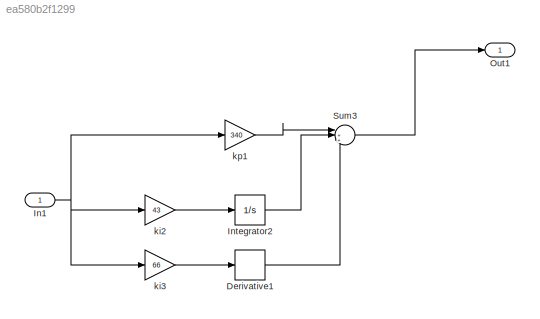
MODEL slx_ea580b2f1299
KIND model
CONFIG AbsTol = auto
CONFIG EnableMultiTasking = off
CONFIG FixedStep = auto
CONFIG MaxStep = auto
CONFIG MinStep = auto
CONFIG RelTol = 1e-3
CONFIG SampleTimeConstraint = Unconstrained
CONFIG SolverName = VariableStepAuto
CONFIG StartTime = 0.0
CONFIG StopTime = 300
BLOCK [Derivative] Derivative1
BLOCK [Inport] In1
  OutDataTypeStr = double
  PortDimensions = 1
  SampleTime = 0
  SamplingMode = Sample based
  SignalType = real
BLOCK [Integrator] Integrator2
  Ports = [1, 1]
BLOCK [Outport] Out1
  OutDataTypeStr = double
  PortDimensions = 1
  SampleTime = 0
  SamplingMode = Sample based
  SignalType = real
BLOCK [Sum] Sum3
  Inputs = |+++
  Ports = [3, 1]
BLOCK [Gain] ki2
  Gain = 43
BLOCK [Gain] ki3
  Gain = 66
BLOCK [Gain] kp1
  Gain = 340
LINE Derivative1:1 -> Sum3:3
NET In1:1 -> ki2:1, ki3:1, kp1:1
LINE Integrator2:1 -> Sum3:2
LINE Sum3:1 -> Out1:1
LINE ki2:1 -> Integrator2:1
LINE ki3:1 -> Derivative1:1
LINE kp1:1 -> Sum3:1
note: NET lines group one-source signal fan-out (src -> all destinations, sorted); 1:1 wires keep LINE
